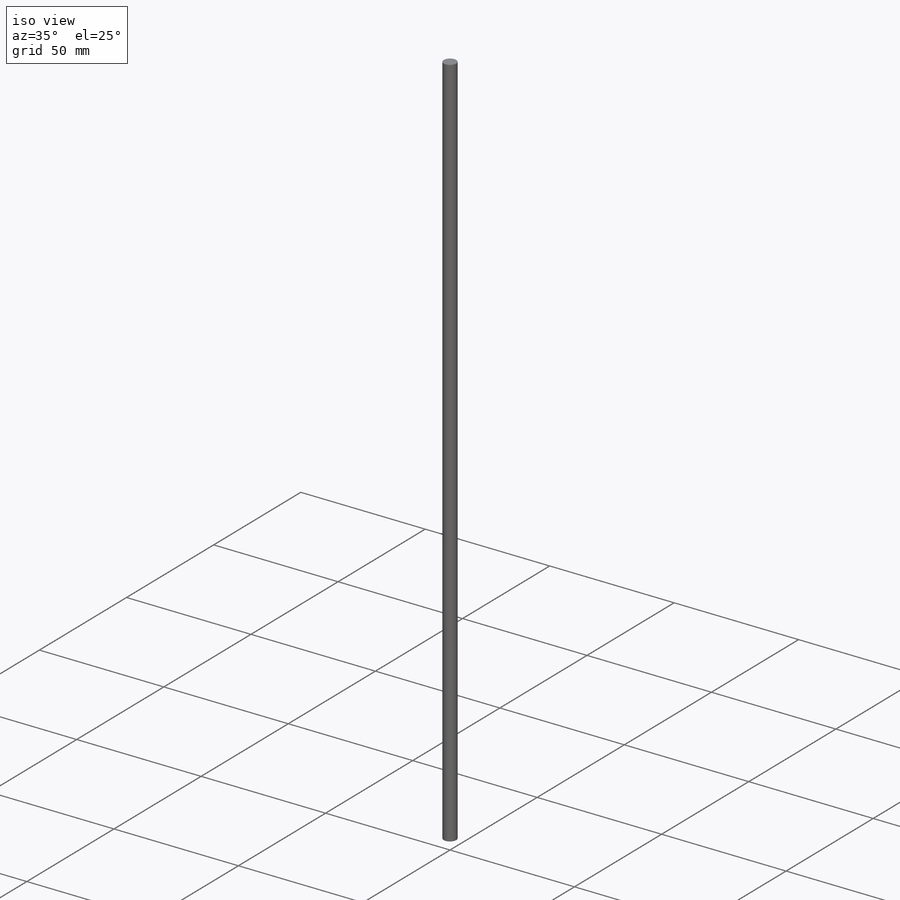
[diagram: iso view]
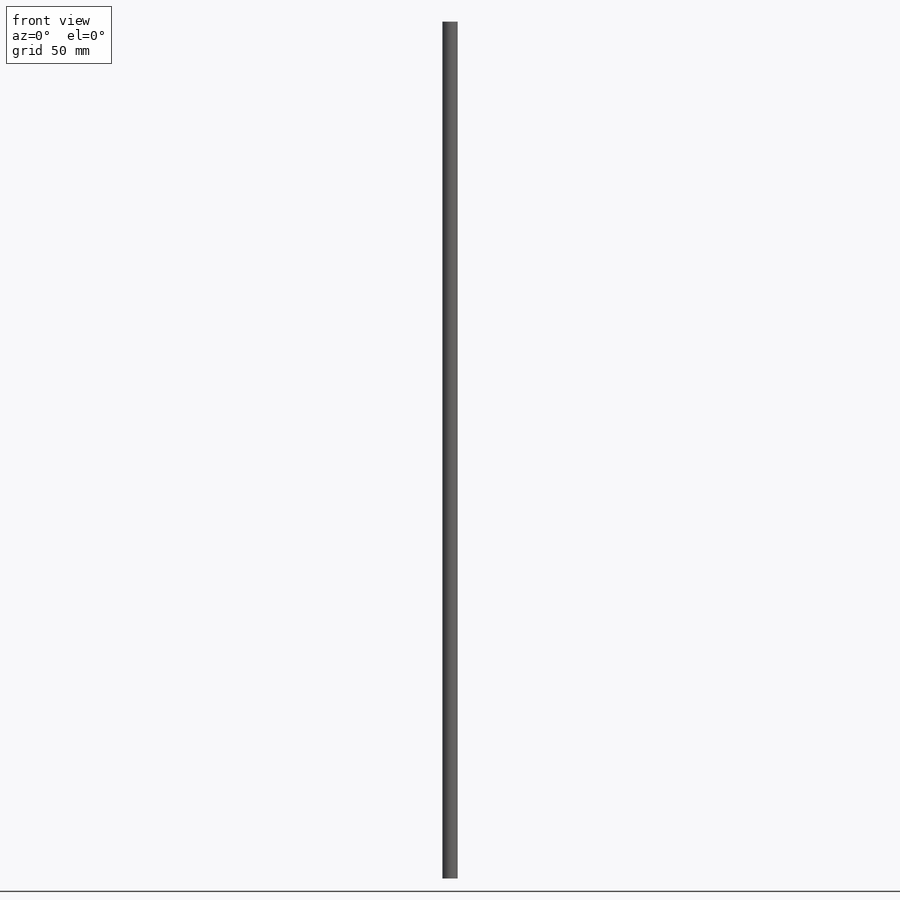
[diagram: front view]
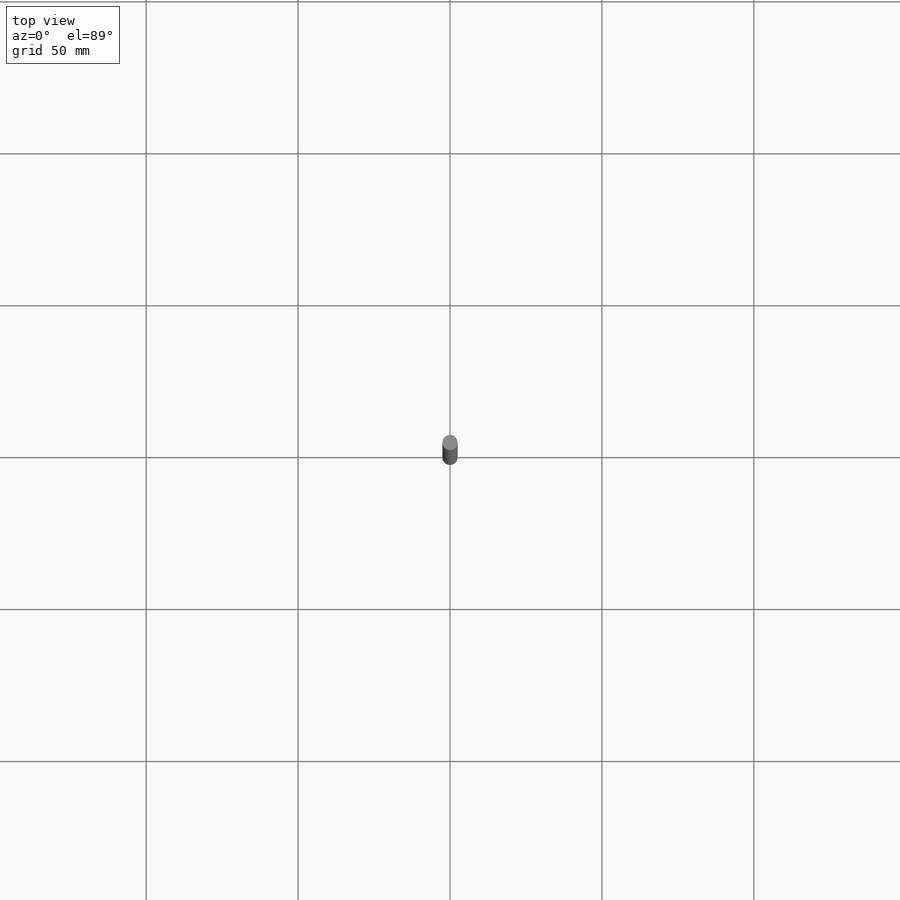
[diagram: top view]
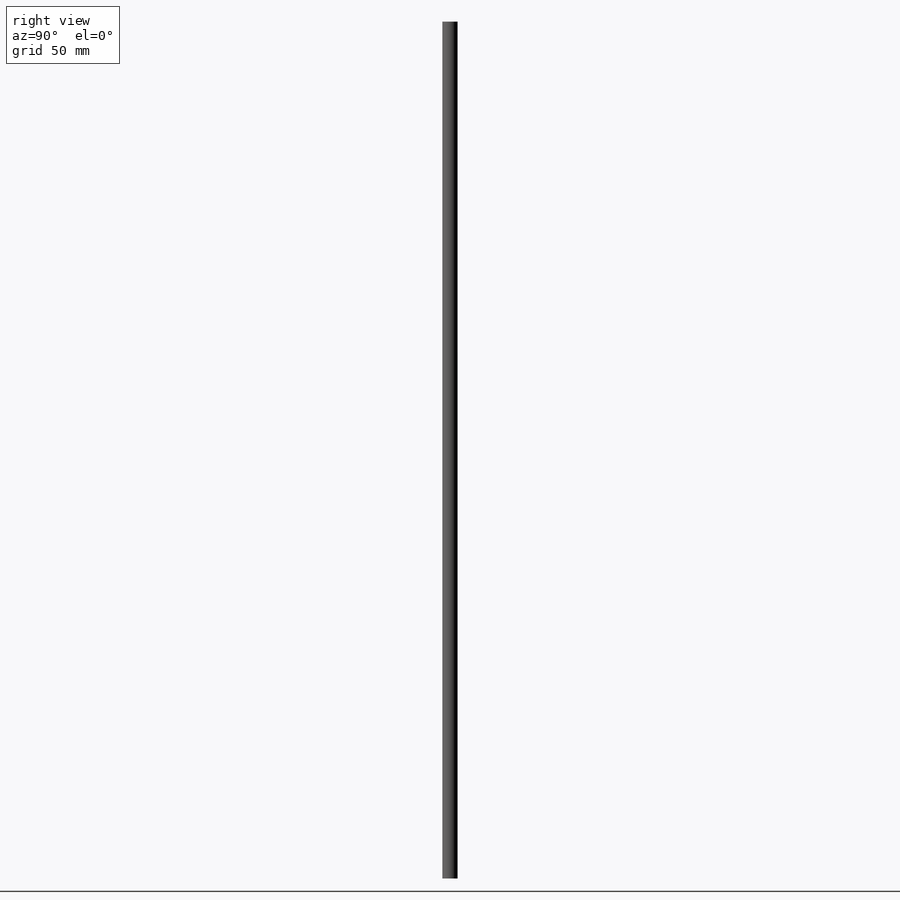
[diagram: right view]
SOLIDWORKS PART (.sldprt)
format: sldprt  version: not decoded by parser v0  size: 597,504 bytes
history: native  units: mm
features: sketch x4, plane x3, material x1, extrude x1, thread x1, helix x1, sweep x1 (+10 scaffold rows collapsed)
feature tree (22):
  scaffold x10  (default folders/planes/origin — collapsed)
  material  "Matériau <non spécifié>"
  plane  "Plan de face"
  plane  "Plan de dessus"
  plane  "Plan de droite"
  sketch  "Esquisse1"  dims[D1=5.0mm]
  sketch  "Esquisse3"  dims[D1=292.0mm]
  extrude  "Boss.-Extru.1"  [1 undecoded]
  thread  "Représentation de filetage2"  Diameter=4.11mm  [1 undecoded]
  sketch  "Esquisse2"  dims[c1.D1=~1.573811mm c2.D1=60.0deg c2.D2=0.8mm c2.D3=4.901mm c2.D4=~1.070394mm]
  sketch  "Esquisse4"
  helix  "Hélice/Spirale1"  Pitch=295mm
  sweep  "Enlèvement de matière-Balayage1"
decode coverage: 5 of 8 modeling features carry decoded parameters
note: ~ marks probable driven/reference dimensions
note: 2 parameter values undecoded
note: suppression state not decoded; provenance and decode notes live in map.json
